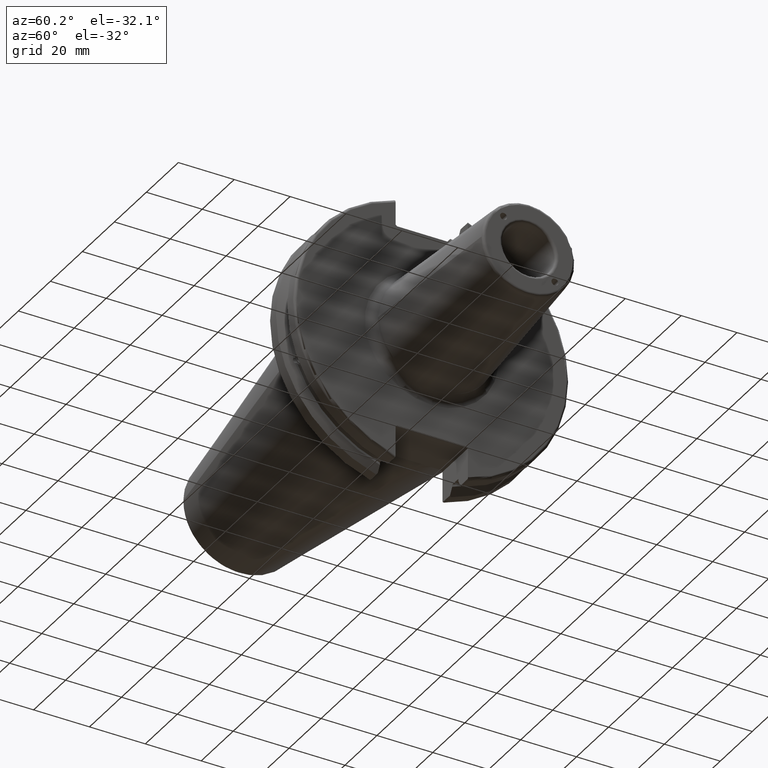
[diagram: clean part render]
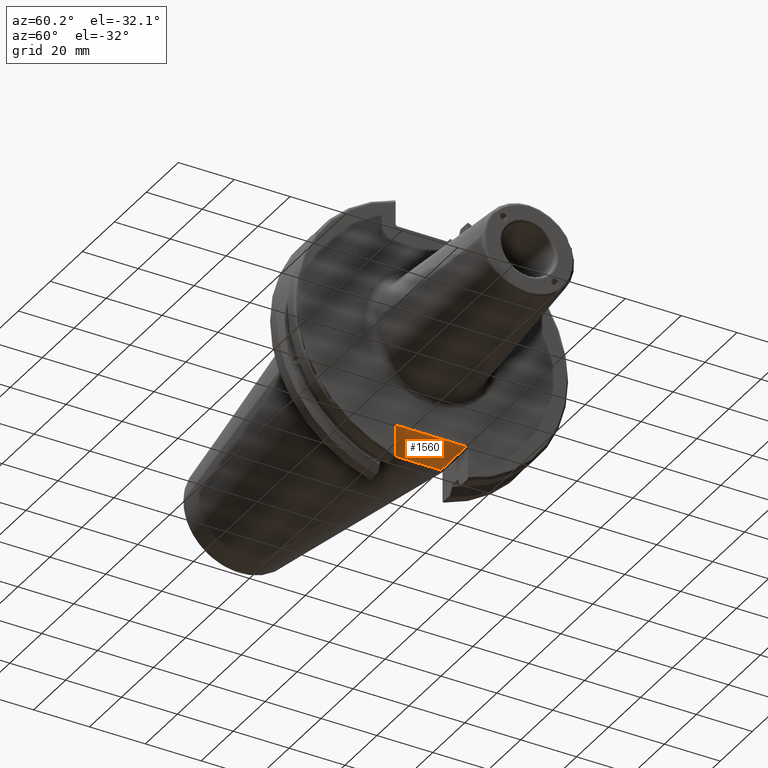
[diagram: same view with one face highlighted and labeled with its STEP entity id]
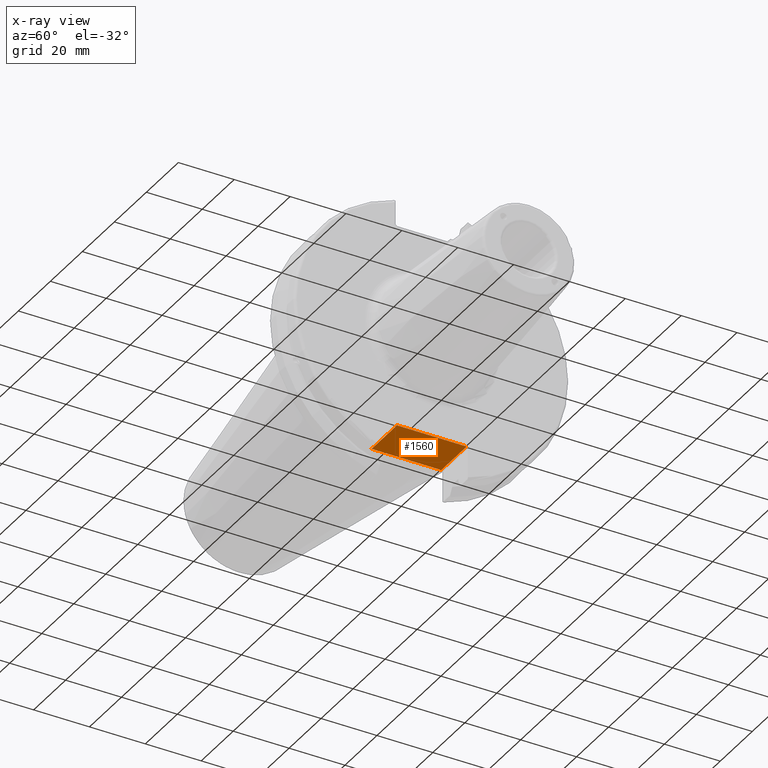
[diagram: x-ray of the same camera — body ghosted, the highlighted face saturated]
A machine part, auxiliary view. The second image highlights one B-rep face of the part: STEP entity #1560.
The next image is the same camera in x-ray: the body ghosted, the highlighted face saturated — about 0% of this face is hidden behind the body in this view.
In plain terms, the highlighted planar face has unit normal (0, 0, 1).
Its self-contained STEP definition (entity closure, byte-faithful):
#137=PLANE('',#1744);
#215=FACE_OUTER_BOUND('',#325,.T.);
#325=EDGE_LOOP('',(#1345,#1346,#1347,#1348));
#442=LINE('',#2270,#536);
#486=LINE('',#2884,#580);
#507=LINE('',#3096,#601);
#508=LINE('',#3098,#602);
#536=VECTOR('',#1830,10.);
#580=VECTOR('',#2048,10.);
#601=VECTOR('',#2127,10.);
#602=VECTOR('',#2130,10.);
#641=VERTEX_POINT('',#2267);
#642=VERTEX_POINT('',#2269);
#734=VERTEX_POINT('',#2881);
#735=VERTEX_POINT('',#2883);
#799=EDGE_CURVE('',#641,#642,#442,.T.);
#921=EDGE_CURVE('',#734,#735,#486,.T.);
#976=EDGE_CURVE('',#642,#734,#507,.T.);
#977=EDGE_CURVE('',#735,#641,#508,.T.);
#1345=ORIENTED_EDGE('',*,*,#976,.F.);
#1346=ORIENTED_EDGE('',*,*,#799,.F.);
#1347=ORIENTED_EDGE('',*,*,#977,.F.);
#1348=ORIENTED_EDGE('',*,*,#921,.F.);
#1560=ADVANCED_FACE('',(#215),#137,.F.);
#1744=AXIS2_PLACEMENT_3D('',#3097,#2128,#2129);
#1830=DIRECTION('',(0.,1.,0.));
#2048=DIRECTION('',(0.,-1.,0.));
#2127=DIRECTION('',(-1.,2.63163976207444E-16,0.));
#2128=DIRECTION('center_axis',(0.,0.,1.));
#2129=DIRECTION('ref_axis',(1.,0.,0.));
#2130=DIRECTION('',(1.,2.63163976207445E-16,0.));
#2267=CARTESIAN_POINT('',(19.05,-12.45,-35.306));
#2269=CARTESIAN_POINT('',(19.05,12.45,-35.306));
#2270=CARTESIAN_POINT('',(19.05,-3.33066907387547E-15,-35.306));
#2881=CARTESIAN_POINT('',(3.175,12.45,-35.306));
#2883=CARTESIAN_POINT('',(3.175,-12.45,-35.306));
#2884=CARTESIAN_POINT('',(3.175,24.60625,-35.306));
#3096=CARTESIAN_POINT('',(10.63125,12.45,-35.306));
#3097=CARTESIAN_POINT('Origin',(18.0875,-6.66133814775094E-15,-35.306));
#3098=CARTESIAN_POINT('',(19.06875,-12.45,-35.306));